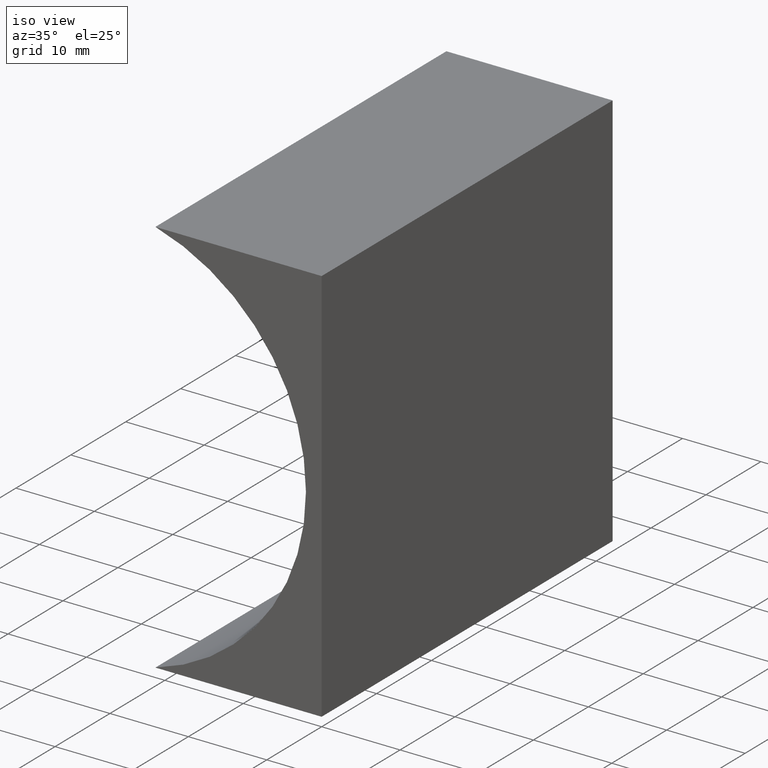
[diagram: clean part render]
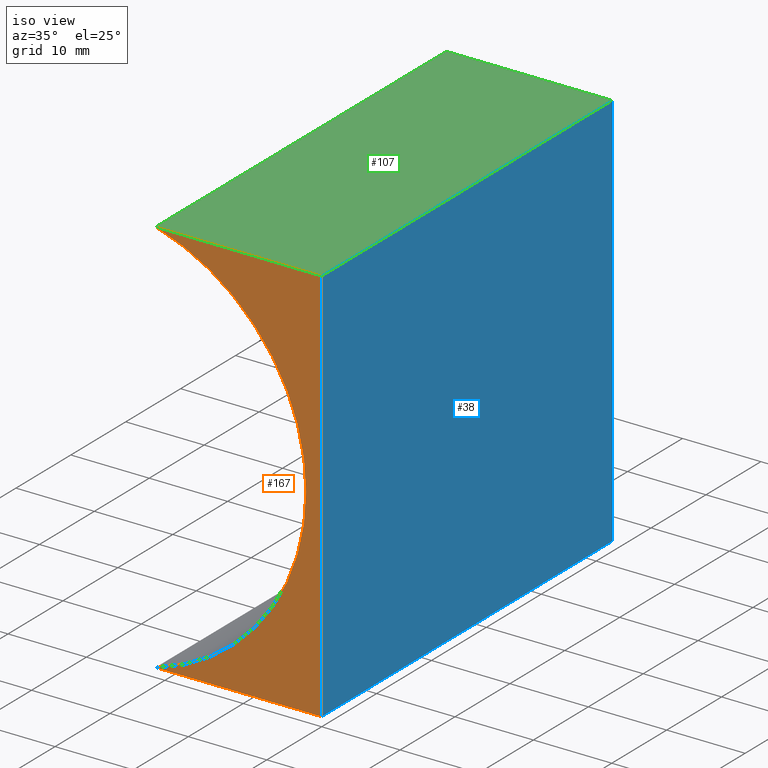
[diagram: same view with three faces highlighted in distinct colors, each labeled with its STEP entity id]
A machine part, iso view with three faces highlighted in distinct colors.
Their STEP definitions:

[orange] entity #167 — the highlighted planar face has unit normal (0, 1, 0).
#2 = CARTESIAN_POINT ( 'NONE',  ( -28.39999999999999900, 0.0000000000000000000, 25.39999999999999900 ) ) ;
#14 = VERTEX_POINT ( 'NONE', #126 ) ;
#16 = CIRCLE ( 'NONE', #71, 26.39999999999999100 ) ;
#18 = CARTESIAN_POINT ( 'NONE',  ( -21.20277831382137300, 0.0000000000000000000, 50.79999999999999700 ) ) ;
#21 = LINE ( 'NONE', #98, #100 ) ;
#33 = DIRECTION ( 'NONE',  ( 0.0000000000000000000, -0.0000000000000000000, 1.000000000000000000 ) ) ;
#55 = CARTESIAN_POINT ( 'NONE',  ( -28.39999999999999900, 0.0000000000000000000, 25.39999999999999900 ) ) ;
#60 = EDGE_CURVE ( 'NONE', #14, #135, #21, .T. ) ;
#61 = VECTOR ( 'NONE', #173, 1000.000000000000000 ) ;
#70 = EDGE_CURVE ( 'NONE', #190, #14, #93, .T. ) ;
#71 = AXIS2_PLACEMENT_3D ( 'NONE', #2, #116, #193 ) ;
#75 = VERTEX_POINT ( 'NONE', #143 ) ;
#76 = ORIENTED_EDGE ( 'NONE', *, *, #70, .F. ) ;
#78 = DIRECTION ( 'NONE',  ( 1.000000000000000000, -0.0000000000000000000, -0.0000000000000000000 ) ) ;
#81 = ORIENTED_EDGE ( 'NONE', *, *, #127, .F. ) ;
#82 = EDGE_LOOP ( 'NONE', ( #81, #176, #76, #121 ) ) ;
#93 = LINE ( 'NONE', #97, #169 ) ;
#97 = CARTESIAN_POINT ( 'NONE',  ( 3.110602869834276900E-015, 0.0000000000000000000, 50.79999999999999700 ) ) ;
#98 = CARTESIAN_POINT ( 'NONE',  ( 0.0000000000000000000, 0.0000000000000000000, 0.0000000000000000000 ) ) ;
#100 = VECTOR ( 'NONE', #187, 1000.000000000000000 ) ;
#106 = FACE_OUTER_BOUND ( 'NONE', #82, .T. ) ;
#109 = CARTESIAN_POINT ( 'NONE',  ( 0.0000000000000000000, 0.0000000000000000000, 0.0000000000000000000 ) ) ;
#116 = DIRECTION ( 'NONE',  ( -0.0000000000000000000, -1.000000000000000000, -0.0000000000000000000 ) ) ;
#121 = ORIENTED_EDGE ( 'NONE', *, *, #149, .F. ) ;
#126 = CARTESIAN_POINT ( 'NONE',  ( 3.110602869834276900E-015, 0.0000000000000000000, 50.79999999999999700 ) ) ;
#127 = EDGE_CURVE ( 'NONE', #135, #75, #171, .T. ) ;
#132 = PLANE ( 'NONE',  #144 ) ;
#135 = VERTEX_POINT ( 'NONE', #202 ) ;
#143 = CARTESIAN_POINT ( 'NONE',  ( -21.20277831382138000, 0.0000000000000000000, 3.469446951953614200E-015 ) ) ;
#144 = AXIS2_PLACEMENT_3D ( 'NONE', #55, #162, #33 ) ;
#149 = EDGE_CURVE ( 'NONE', #75, #190, #16, .T. ) ;
#162 = DIRECTION ( 'NONE',  ( 0.0000000000000000000, 1.000000000000000000, 0.0000000000000000000 ) ) ;
#167 = ADVANCED_FACE ( 'NONE', ( #106 ), #132, .F. ) ;
#169 = VECTOR ( 'NONE', #78, 1000.000000000000000 ) ;
#171 = LINE ( 'NONE', #109, #61 ) ;
#173 = DIRECTION ( 'NONE',  ( -1.000000000000000000, 0.0000000000000000000, 3.272634275190245100E-016 ) ) ;
#176 = ORIENTED_EDGE ( 'NONE', *, *, #60, .F. ) ;
#187 = DIRECTION ( 'NONE',  ( -6.123233995736766000E-017, -0.0000000000000000000, -1.000000000000000000 ) ) ;
#190 = VERTEX_POINT ( 'NONE', #18 ) ;
#193 = DIRECTION ( 'NONE',  ( 0.0000000000000000000, 0.0000000000000000000, 1.000000000000000000 ) ) ;
#202 = CARTESIAN_POINT ( 'NONE',  ( 0.0000000000000000000, 0.0000000000000000000, 0.0000000000000000000 ) ) ;

[blue] entity #38 — the highlighted planar face has unit normal (-1, 0, 0).
#6 = LINE ( 'NONE', #154, #96 ) ;
#14 = VERTEX_POINT ( 'NONE', #126 ) ;
#15 = VECTOR ( 'NONE', #64, 1000.000000000000000 ) ;
#21 = LINE ( 'NONE', #98, #100 ) ;
#30 = DIRECTION ( 'NONE',  ( -0.0000000000000000000, -1.000000000000000000, -0.0000000000000000000 ) ) ;
#36 = ORIENTED_EDGE ( 'NONE', *, *, #60, .T. ) ;
#38 = ADVANCED_FACE ( 'NONE', ( #182 ), #113, .F. ) ;
#42 = ORIENTED_EDGE ( 'NONE', *, *, #45, .F. ) ;
#45 = EDGE_CURVE ( 'NONE', #122, #159, #184, .T. ) ;
#46 = DIRECTION ( 'NONE',  ( -0.0000000000000000000, -1.000000000000000000, -0.0000000000000000000 ) ) ;
#48 = CARTESIAN_POINT ( 'NONE',  ( 0.0000000000000000000, 53.00000000000000000, 0.0000000000000000000 ) ) ;
#60 = EDGE_CURVE ( 'NONE', #14, #135, #21, .T. ) ;
#64 = DIRECTION ( 'NONE',  ( -6.123233995736766000E-017, -0.0000000000000000000, -1.000000000000000000 ) ) ;
#66 = DIRECTION ( 'NONE',  ( -1.000000000000000000, 0.0000000000000000000, 6.123233995736766000E-017 ) ) ;
#67 = CARTESIAN_POINT ( 'NONE',  ( 3.110602869834276900E-015, 53.00000000000000000, 50.79999999999999700 ) ) ;
#69 = CARTESIAN_POINT ( 'NONE',  ( 0.0000000000000000000, 53.00000000000000000, 0.0000000000000000000 ) ) ;
#89 = EDGE_LOOP ( 'NONE', ( #36, #181, #42, #198 ) ) ;
#96 = VECTOR ( 'NONE', #46, 1000.000000000000000 ) ;
#98 = CARTESIAN_POINT ( 'NONE',  ( 0.0000000000000000000, 0.0000000000000000000, 0.0000000000000000000 ) ) ;
#99 = EDGE_CURVE ( 'NONE', #159, #135, #6, .T. ) ;
#100 = VECTOR ( 'NONE', #187, 1000.000000000000000 ) ;
#101 = VECTOR ( 'NONE', #30, 1000.000000000000000 ) ;
#113 = PLANE ( 'NONE',  #189 ) ;
#122 = VERTEX_POINT ( 'NONE', #129 ) ;
#126 = CARTESIAN_POINT ( 'NONE',  ( 3.110602869834276900E-015, 0.0000000000000000000, 50.79999999999999700 ) ) ;
#129 = CARTESIAN_POINT ( 'NONE',  ( 3.110602869834276900E-015, 53.00000000000000000, 50.79999999999999700 ) ) ;
#131 = LINE ( 'NONE', #67, #101 ) ;
#135 = VERTEX_POINT ( 'NONE', #202 ) ;
#137 = EDGE_CURVE ( 'NONE', #122, #14, #131, .T. ) ;
#154 = CARTESIAN_POINT ( 'NONE',  ( 0.0000000000000000000, 53.00000000000000000, 0.0000000000000000000 ) ) ;
#156 = DIRECTION ( 'NONE',  ( 6.123233995736766000E-017, 0.0000000000000000000, 1.000000000000000000 ) ) ;
#159 = VERTEX_POINT ( 'NONE', #69 ) ;
#181 = ORIENTED_EDGE ( 'NONE', *, *, #99, .F. ) ;
#182 = FACE_OUTER_BOUND ( 'NONE', #89, .T. ) ;
#184 = LINE ( 'NONE', #48, #15 ) ;
#187 = DIRECTION ( 'NONE',  ( -6.123233995736766000E-017, -0.0000000000000000000, -1.000000000000000000 ) ) ;
#188 = CARTESIAN_POINT ( 'NONE',  ( 0.0000000000000000000, 53.00000000000000000, 0.0000000000000000000 ) ) ;
#189 = AXIS2_PLACEMENT_3D ( 'NONE', #188, #66, #156 ) ;
#198 = ORIENTED_EDGE ( 'NONE', *, *, #137, .T. ) ;
#202 = CARTESIAN_POINT ( 'NONE',  ( 0.0000000000000000000, 0.0000000000000000000, 0.0000000000000000000 ) ) ;

[green] entity #107 — the highlighted planar face has unit normal (0, 0, -1).
#8 = CARTESIAN_POINT ( 'NONE',  ( 3.110602869834276900E-015, 53.00000000000000000, 50.79999999999999700 ) ) ;
#13 = AXIS2_PLACEMENT_3D ( 'NONE', #186, #25, #123 ) ;
#14 = VERTEX_POINT ( 'NONE', #126 ) ;
#18 = CARTESIAN_POINT ( 'NONE',  ( -21.20277831382137300, 0.0000000000000000000, 50.79999999999999700 ) ) ;
#25 = DIRECTION ( 'NONE',  ( 0.0000000000000000000, 0.0000000000000000000, -1.000000000000000000 ) ) ;
#30 = DIRECTION ( 'NONE',  ( -0.0000000000000000000, -1.000000000000000000, -0.0000000000000000000 ) ) ;
#37 = VERTEX_POINT ( 'NONE', #79 ) ;
#47 = VECTOR ( 'NONE', #80, 1000.000000000000000 ) ;
#53 = VECTOR ( 'NONE', #111, 1000.000000000000000 ) ;
#67 = CARTESIAN_POINT ( 'NONE',  ( 3.110602869834276900E-015, 53.00000000000000000, 50.79999999999999700 ) ) ;
#70 = EDGE_CURVE ( 'NONE', #190, #14, #93, .T. ) ;
#78 = DIRECTION ( 'NONE',  ( 1.000000000000000000, -0.0000000000000000000, -0.0000000000000000000 ) ) ;
#79 = CARTESIAN_POINT ( 'NONE',  ( -21.20277831382137300, 53.00000000000000000, 50.79999999999999700 ) ) ;
#80 = DIRECTION ( 'NONE',  ( 1.000000000000000000, -0.0000000000000000000, -0.0000000000000000000 ) ) ;
#86 = EDGE_CURVE ( 'NONE', #37, #190, #105, .T. ) ;
#90 = LINE ( 'NONE', #8, #47 ) ;
#93 = LINE ( 'NONE', #97, #169 ) ;
#97 = CARTESIAN_POINT ( 'NONE',  ( 3.110602869834276900E-015, 0.0000000000000000000, 50.79999999999999700 ) ) ;
#101 = VECTOR ( 'NONE', #30, 1000.000000000000000 ) ;
#105 = LINE ( 'NONE', #124, #53 ) ;
#107 = ADVANCED_FACE ( 'NONE', ( #136 ), #141, .F. ) ;
#111 = DIRECTION ( 'NONE',  ( -0.0000000000000000000, -1.000000000000000000, -0.0000000000000000000 ) ) ;
#117 = EDGE_CURVE ( 'NONE', #37, #122, #90, .T. ) ;
#119 = ORIENTED_EDGE ( 'NONE', *, *, #70, .T. ) ;
#122 = VERTEX_POINT ( 'NONE', #129 ) ;
#123 = DIRECTION ( 'NONE',  ( -1.000000000000000000, 0.0000000000000000000, -0.0000000000000000000 ) ) ;
#124 = CARTESIAN_POINT ( 'NONE',  ( -21.20277831382137300, 53.00000000000000000, 50.79999999999999700 ) ) ;
#126 = CARTESIAN_POINT ( 'NONE',  ( 3.110602869834276900E-015, 0.0000000000000000000, 50.79999999999999700 ) ) ;
#129 = CARTESIAN_POINT ( 'NONE',  ( 3.110602869834276900E-015, 53.00000000000000000, 50.79999999999999700 ) ) ;
#131 = LINE ( 'NONE', #67, #101 ) ;
#134 = ORIENTED_EDGE ( 'NONE', *, *, #117, .F. ) ;
#136 = FACE_OUTER_BOUND ( 'NONE', #204, .T. ) ;
#137 = EDGE_CURVE ( 'NONE', #122, #14, #131, .T. ) ;
#141 = PLANE ( 'NONE',  #13 ) ;
#165 = ORIENTED_EDGE ( 'NONE', *, *, #137, .F. ) ;
#166 = ORIENTED_EDGE ( 'NONE', *, *, #86, .T. ) ;
#169 = VECTOR ( 'NONE', #78, 1000.000000000000000 ) ;
#186 = CARTESIAN_POINT ( 'NONE',  ( 3.110602869834276900E-015, 53.00000000000000000, 50.79999999999999700 ) ) ;
#190 = VERTEX_POINT ( 'NONE', #18 ) ;
#204 = EDGE_LOOP ( 'NONE', ( #119, #165, #134, #166 ) ) ;